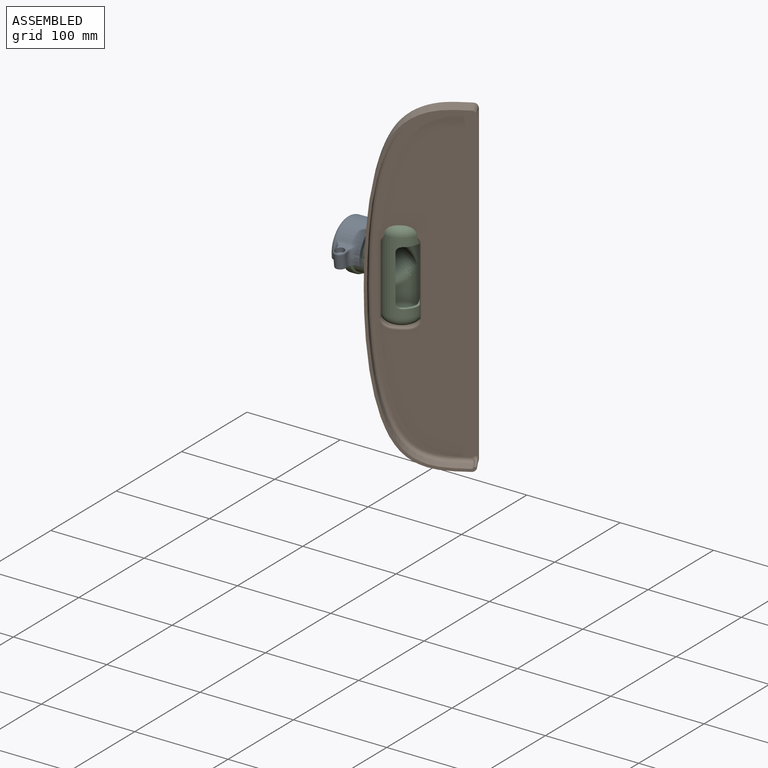
[diagram: assembled view]
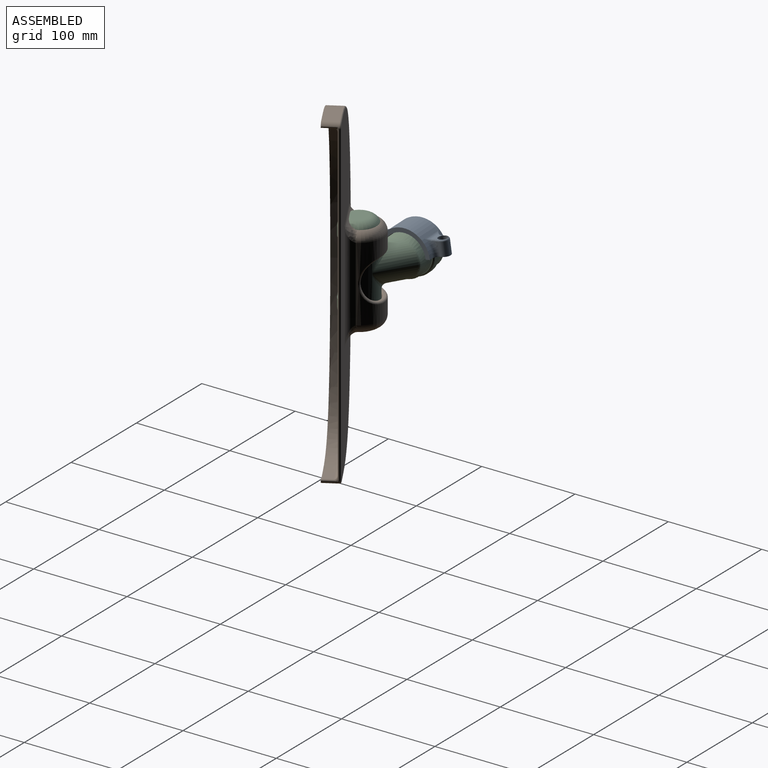
[diagram: assembled view, second angle]
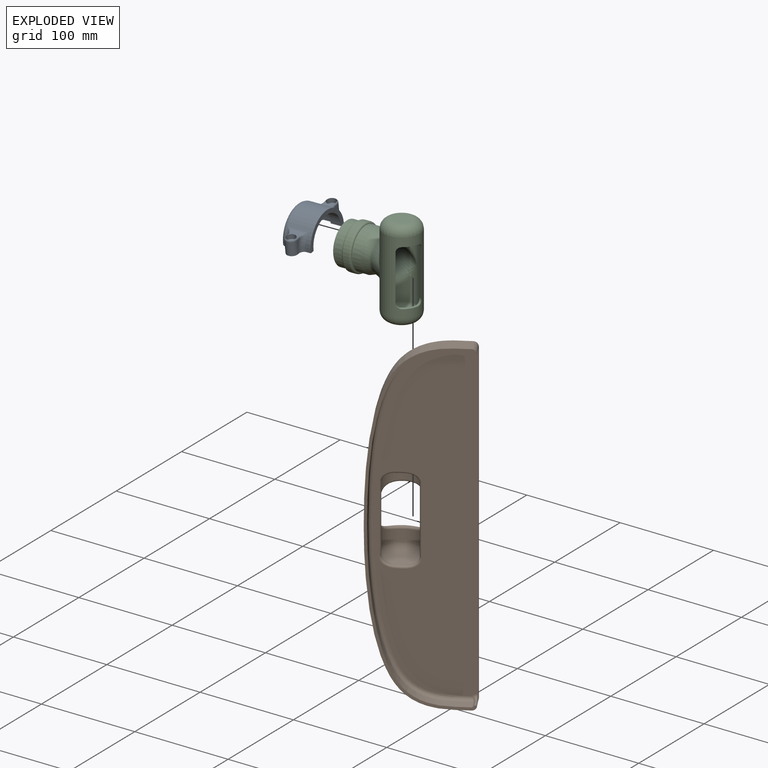
[diagram: exploded view]
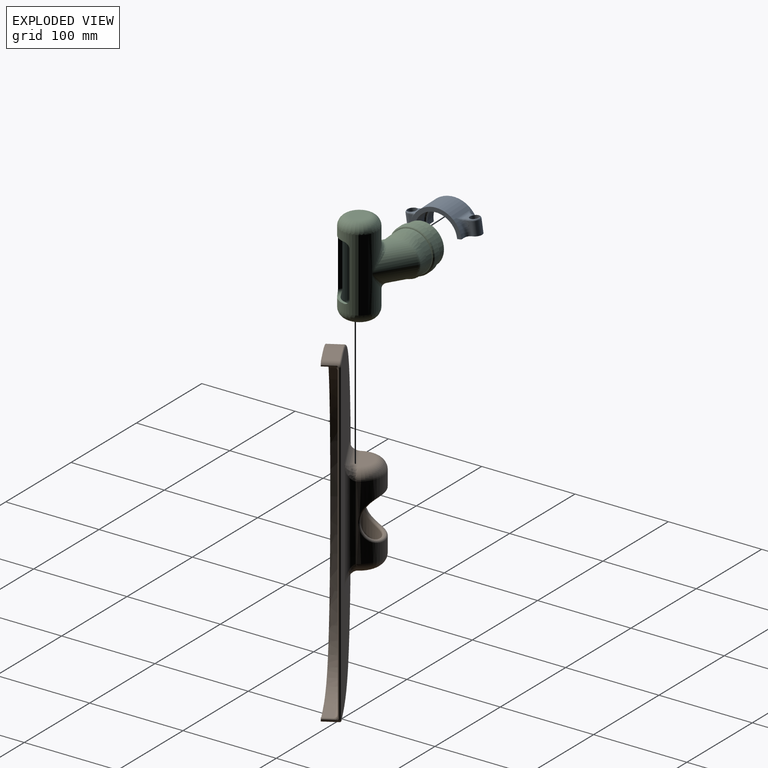
[diagram: exploded view, second angle]
ASSEMBLY  parts=3 mates=2
PART A: 70 faces, bbox 79x30.2x31 mm
  f0: cylinder r=27mm len=54mm, axis (0,0,1), area 1463.7mm2, adj f1,f9,f17,f18,f19,f36,f37,f38
  f1: torus R=22.5mm, axis (0,0,1), area 545.6mm2, adj f0,f2,f50,f60
  f2: cylinder r=22.5mm len=45mm, axis (0,0,1), area 706.9mm2, adj f1,f3,f51,f61
  f3: plane 45.5x23.75mm, normal (0,0,-1), area 18.3mm2, adj f2,f4,f51,f52,f56,f61,f62,f69
  f4: torus R=22.75mm, axis (0,0,1), area 237.1mm2, adj f3,f5,f52,f62
  f5: cylinder r=24.75mm len=49.5mm, axis (0,0,1), area 466.5mm2, adj f4,f6,f53,f63
  f6: torus R=22.75mm, axis (0,0,1), area 237.1mm2, adj f5,f7,f54,f64
  f7: plane 45.5x23.75mm, normal (0,0,1), area 18.3mm2, adj f6,f8,f54,f55,f56,f64,f65,f69
  f8: cylinder r=22.5mm len=45mm, axis (0,0,1), area 777.5mm2, adj f7,f9,f55,f65
  f9: plane 54x28mm, normal (0,0,-1), area 358.9mm2, adj f0,f8,f49,f55,f56,f65,f66,f69
  f10: cylinder r=3mm len=11mm, axis (0,1,0), area 207.3mm2, adj f11,f56
  f11: plane 10x10mm, normal (0,-1,0), area 50.3mm2, adj f10,f15
  f12: plane 14.27x3.76mm, normal (0,0,-1), area 26.2mm2, adj f13,f17,f25,f26,f56,f58
  f13: cylinder r=6mm len=14.27mm, axis (0,1,0), area 268.9mm2, adj f12,f14,f24,f56
  f14: plane 14.27x3.76mm, normal (0,0,1), area 26.2mm2, adj f13,f18,f22,f23,f56,f57
  f15: cylinder r=5mm len=10mm, axis (0,1,0), area 157.1mm2, adj f11,f16,f23,f24,f25
  f16: plane 10.3x5.02mm, normal (0,-1,0), area 32.1mm2, adj f15,f19,f21,f22,f26,f27
  f17: torus R=32mm, axis (0,0,-1), area 117.4mm2, adj f0,f12,f27,f28,f58
  f18: torus R=32mm, axis (0,0,-1), area 117.4mm2, adj f0,f14,f20,f21,f57
  f19: cylinder r=5mm len=22mm, axis (0,0,1), area 72.3mm2, adj f0,f16,f20,f28
  f20: bspline ~6.42x5.74mm, area 8.2mm2, adj f18,f19,f21
  f21: bspline ~7.44x3.54mm, area 11.1mm2, adj f16,f18,f20,f22
  f22: cylinder r=2mm len=2mm, axis (1,0,0), area 2.4mm2, adj f14,f16,f21,f23
  f23: bspline ~4.15x2.48mm, area 7.4mm2, adj f14,f15,f22,f24
  f24: torus R=4mm, axis (0,-1,0), area 37.2mm2, adj f13,f15,f23,f25
  f25: bspline ~4.15x2.48mm, area 7.4mm2, adj f12,f15,f24,f26
  f26: cylinder r=2mm len=2mm, axis (-1,0,0), area 2.4mm2, adj f12,f16,f25,f27
  f27: bspline ~7.44x3.54mm, area 11.1mm2, adj f16,f17,f26,f28
  f28: bspline ~6.42x5.74mm, area 8.3mm2, adj f17,f19,f27
  f29: cylinder r=3mm len=11mm, axis (0,1,0), area 207.3mm2, adj f30,f69
  f30: plane 10x10mm, normal (0,-1,0), area 50.3mm2, adj f29,f34
  f31: plane 14.27x3.76mm, normal (0,0,-1), area 26.2mm2, adj f32,f36,f44,f45,f67,f69
  f32: cylinder r=6mm len=14.27mm, axis (0,1,0), area 268.9mm2, adj f31,f33,f43,f69
  f33: plane 14.27x3.76mm, normal (0,0,1), area 26.2mm2, adj f32,f37,f41,f42,f68,f69
  f34: cylinder r=5mm len=10mm, axis (0,1,0), area 157.1mm2, adj f30,f35,f42,f43,f44
  f35: plane 10.3x5.03mm, normal (0,-1,0), area 32.1mm2, adj f34,f38,f40,f41,f45,f46
  f36: torus R=32mm, axis (0,0,-1), area 117.4mm2, adj f0,f31,f46,f47,f67
  f37: torus R=32mm, axis (0,0,-1), area 117.4mm2, adj f0,f33,f39,f40,f68
  f38: cylinder r=5mm len=22mm, axis (0,0,1), area 72.3mm2, adj f0,f35,f39,f47
  f39: bspline ~6.42x5.74mm, area 8.2mm2, adj f37,f38,f40
  f40: bspline ~7.44x3.54mm, area 11.1mm2, adj f35,f37,f39,f41
  f41: cylinder r=2mm len=2mm, axis (-1,0,0), area 2.4mm2, adj f33,f35,f40,f42
  f42: bspline ~4.15x2.48mm, area 7.4mm2, adj f33,f34,f41,f43
  f43: torus R=4mm, axis (0,-1,0), area 37.2mm2, adj f32,f34,f42,f44
  f44: bspline ~4.15x2.48mm, area 7.4mm2, adj f31,f34,f43,f45
  f45: cylinder r=2mm len=2mm, axis (1,0,0), area 2.4mm2, adj f31,f35,f44,f46
  f46: bspline ~7.44x3.54mm, area 11.1mm2, adj f35,f36,f45,f47
  f47: bspline ~6.42x5.74mm, area 8.3mm2, adj f36,f38,f46
  f48: plane 1x0.21mm, normal (1,0,0), area 0.2mm2, adj f0,f50,f56,f57
  f49: plane 4.5x1mm, normal (1,0,0), area 4.5mm2, adj f0,f9,f56,f58
  f50: cylinder r=4.51mm len=4.5mm, axis (0,-1,0), area 6.9mm2, adj f1,f48,f51,f56
  f51: plane 10x1mm, normal (-1,0,0), area 10mm2, adj f2,f3,f50,f56
  f52: cylinder r=2mm len=2mm, axis (0,-1,0), area 3.1mm2, adj f3,f4,f53,f56
  f53: plane 6x1mm, normal (-1,0,0), area 6mm2, adj f5,f52,f54,f56
  f54: cylinder r=2mm len=2mm, axis (0,-1,0), area 3.1mm2, adj f6,f7,f53,f56
  f55: plane 11x1mm, normal (-1,0,0), area 11mm2, adj f7,f8,f9,f56
  f56: plane 31x16.5mm, normal (0,1,0), area 225.4mm2, adj f3,f7,f9,f10,f12,f13,f14,f48
  f57: cylinder r=5mm len=5mm, axis (0,-1,0), area 7.9mm2, adj f14,f18,f48,f56
  f58: cylinder r=5mm len=5mm, axis (0,-1,0), area 7.9mm2, adj f12,f17,f49,f56
  f59: plane 1x0.21mm, normal (-1,0,0), area 0.2mm2, adj f0,f60,f68,f69
  f60: cylinder r=4.51mm len=4.5mm, axis (0,-1,0), area 6.9mm2, adj f1,f59,f61,f69
  f61: plane 10x1mm, normal (1,0,0), area 10mm2, adj f2,f3,f60,f69
  f62: cylinder r=2mm len=2mm, axis (0,-1,0), area 3.1mm2, adj f3,f4,f63,f69
  f63: plane 6x1mm, normal (1,0,0), area 6mm2, adj f5,f62,f64,f69
  f64: cylinder r=2mm len=2mm, axis (0,-1,0), area 3.1mm2, adj f6,f7,f63,f69
  f65: plane 11x1mm, normal (1,0,0), area 11mm2, adj f7,f8,f9,f69
  f66: plane 4.5x1mm, normal (-1,0,0), area 4.5mm2, adj f0,f9,f67,f69
  f67: cylinder r=5mm len=5mm, axis (0,-1,0), area 7.9mm2, adj f31,f36,f66,f69
  f68: cylinder r=5mm len=5mm, axis (0,-1,0), area 7.9mm2, adj f33,f37,f59,f69
  f69: plane 31x16.5mm, normal (0,1,0), area 225.4mm2, adj f3,f7,f9,f29,f31,f32,f33,f59
PART B: 74 faces, bbox 355.4x121.6x60.9 mm
  f0: bspline ~6.87x3.62mm, area 7.4mm2, adj f15,f61,f62,f72
  f1: bspline ~6.87x3.62mm, area 7.4mm2, adj f10,f61,f63,f73
  f2: plane 81.27x5mm, normal (0,-1,0), area 402.1mm2, adj f28,f31,f32,f38,f39
  f3: plane 336.08x92.08mm, normal (0,0,1), area 23945.3mm2, adj f42,f43,f44,f45,f61,f64,f66,f67
  f4: plane 351.53x100.13mm, normal (0,0,-1), area 22179.3mm2, adj f25,f26,f27,f37,f40,f48,f49,f50
  f5: plane 340x0.5mm, normal (0,1,0), area 170mm2, adj f10,f15,f50,f61
  f6: plane 15x11mm, normal (1,0,0), area 165mm2, adj f7,f17,f18,f69
  f7: extruded ~172x77mm, area 2324.1mm2, adj f6,f8,f18,f68
  f8: extruded ~172x77mm, area 2324.1mm2, adj f7,f9,f18,f67
  f9: plane 15x11mm, normal (-1,0,0), area 165mm2, adj f8,f16,f18,f66
  f10: cylinder r=5mm len=16.5mm, axis (0,0,-1), area 95.8mm2, adj f1,f5,f11,f18,f48,f61,f63
  f11: plane 16.5x15mm, normal (-1,0,0), area 247.5mm2, adj f10,f12,f18,f49
  f12: extruded ~175x80mm, area 3568.7mm2, adj f11,f13,f18,f51,f53,f55
  f13: extruded ~175x80mm, area 3569.4mm2, adj f12,f14,f18,f56,f57,f58,f59,f60
  f14: plane 16.5x15mm, normal (1,0,0), area 247.5mm2, adj f13,f15,f18,f54
  f15: cylinder r=5mm len=16.5mm, axis (0,0,-1), area 95.8mm2, adj f0,f5,f14,f18,f52,f61,f62
  f16: cylinder r=2mm len=11mm, axis (0,0,-1), area 24.8mm2, adj f9,f18,f62,f65
  f17: cylinder r=2mm len=11mm, axis (0,0,-1), area 24.8mm2, adj f6,f18,f63,f70
  f18: plane 350x99.66mm, normal (0,0,1), area 1403.8mm2, adj f6,f7,f8,f9,f10,f11,f12,f13
  f19: plane 30x15mm, normal (1,0,0), area 353.4mm2, adj f25,f30
  f20: plane 30x15mm, normal (-1,0,0), area 353.4mm2, adj f27,f33
  f21: cylinder r=20mm len=70mm, axis (-1,0,0), area 3428.9mm2, adj f35,f36,f42,f45,f47
  f22: plane 20x20mm, normal (-1,0,0), area 314.2mm2, adj f36
  f23: plane 20x20mm, normal (1,0,0), area 314.2mm2, adj f35
  f24: cylinder r=22mm len=45.96mm, axis (0,-1,0), area 179.3mm2, adj f46,f47
  f25: cylinder r=10mm len=50mm, axis (0,1,0), area 628.3mm2, adj f4,f19,f29,f31
  f26: cylinder r=10mm len=120mm, axis (-1,0,0), area 1570.8mm2, adj f4,f28,f29,f34
  f27: cylinder r=10mm len=50mm, axis (0,-1,0), area 628.3mm2, adj f4,f20,f32,f34
  f28: cylinder r=25mm len=80mm, axis (-1,0,0), area 13796.8mm2, adj f2,f26,f30,f33,f46
  f29: bspline ~20x20mm, area 105mm2, adj f25,f26,f30
  f30: torus R=15mm, axis (-1,0,0), area 1054.4mm2, adj f19,f28,f29,f31
  f31: torus R=20mm, axis (0,1,0), area 130.2mm2, adj f2,f25,f30,f40,f41
  f32: torus R=20mm, axis (0,1,0), area 130.2mm2, adj f2,f27,f33,f37
  f33: torus R=15mm, axis (-1,0,0), area 1054.4mm2, adj f20,f28,f32,f34
  f34: bspline ~20x20mm, area 105.4mm2, adj f26,f27,f33
  f35: torus R=10mm, axis (-1,0,0), area 1170.4mm2, adj f21,f23,f43
  f36: torus R=10mm, axis (-1,0,0), area 1170.4mm2, adj f21,f22,f44
  f37: bspline ~21.06x15mm, area 85mm2, adj f4,f32,f38,f53
  f38: cylinder r=5mm len=78.58mm, axis (1,0,0), area 556.9mm2, adj f2,f37,f39,f55,f57
  f39: bspline ~13.33x5.34mm, area 17.8mm2, adj f2,f38,f41,f59
  f40: bspline ~17.9x14.87mm, area 90.5mm2, adj f4,f31,f41,f58
  f41: bspline ~6.64x5.47mm, area 17.2mm2, adj f31,f39,f40,f60
  f42: cylinder r=2mm len=70mm, axis (-1,0,0), area 293.2mm2, adj f3,f21,f43,f44
  f43: bspline ~38.11x12.56mm, area 176.3mm2, adj f3,f35,f42,f45
  f44: bspline ~38.11x14.31mm, area 176.3mm2, adj f3,f36,f42,f45
  f45: cylinder r=2mm len=70mm, axis (-1,0,0), area 293.2mm2, adj f3,f21,f43,f44
  f46: bspline ~49.95x47.83mm, area 542.6mm2, adj f24,f28
  f47: bspline ~47.63x43.96mm, area 609.4mm2, adj f21,f24
  f48: torus R=3.5mm, axis (0,0,1), area 16.5mm2, adj f4,f10,f49,f50
  f49: cylinder r=1.5mm len=15mm, axis (0,-1,0), area 35.3mm2, adj f4,f11,f48,f51
  f50: cylinder r=1.5mm len=340mm, axis (-1,0,0), area 801.1mm2, adj f4,f5,f48,f52
  f51: bspline ~130.19x100.01mm, area 392.9mm2, adj f4,f12,f49,f53
  f52: torus R=3.5mm, axis (0,0,1), area 16.5mm2, adj f4,f15,f50,f54
  f53: bspline ~11.17x2.22mm, area 16.4mm2, adj f12,f37,f51,f55
  f54: cylinder r=1.5mm len=15mm, axis (0,1,0), area 35.3mm2, adj f4,f14,f52,f56
  f55: bspline ~49.94x2.43mm, area 88.3mm2, adj f12,f38,f53,f57
  f56: bspline ~140.11x116.2mm, area 391.4mm2, adj f4,f13,f54,f58
  f57: bspline ~55.37x2.57mm, area 82.3mm2, adj f13,f38,f55,f59
  f58: bspline ~8.51x2.28mm, area 11.1mm2, adj f13,f40,f56,f60
  f59: bspline ~13.48x1.8mm, area 5.3mm2, adj f13,f39,f57,f60
  f60: bspline ~6.58x1.68mm, area 6.3mm2, adj f13,f41,f58,f59
  f61: cylinder r=1mm len=341.73mm, axis (1,0,0), area 529.5mm2, adj f0,f1,f3,f5,f10,f15,f72,f73
  f62: cylinder r=1.5mm len=14.19mm, axis (0,0,-1), area 56.9mm2, adj f0,f15,f16,f18,f64,f72
  f63: cylinder r=1.5mm len=14.19mm, axis (0,0,-1), area 56.9mm2, adj f1,f10,f17,f18,f71,f73
  f64: torus R=5.5mm, axis (0,0,1), area 15.9mm2, adj f3,f62,f65,f72
  f65: bspline ~4.95x4mm, area 5.8mm2, adj f16,f64,f66
  f66: cylinder r=4mm len=15mm, axis (0,-1,0), area 90.9mm2, adj f3,f9,f65,f67
  f67: bspline ~234.78x104.73mm, area 1313.3mm2, adj f3,f8,f66,f68
  f68: bspline ~186.32x107.39mm, area 1313.2mm2, adj f3,f7,f67,f69
  f69: cylinder r=4mm len=15mm, axis (0,1,0), area 90.9mm2, adj f3,f6,f68,f70
  f70: bspline ~4.95x4mm, area 5.8mm2, adj f17,f69,f71
  f71: torus R=5.5mm, axis (0,0,1), area 15.9mm2, adj f3,f63,f70,f73
  f72: bspline ~5.45x4.83mm, area 10.5mm2, adj f0,f3,f61,f62,f64
  f73: bspline ~5.46x4.83mm, area 10.5mm2, adj f1,f3,f61,f63,f71
PART C: 35 faces, bbox 65.7x108.6x104 mm
  f0: extruded ~44x41.71mm, area 1244.1mm2, adj f32,f33
  f1: cylinder r=19.5mm len=78mm, axis (0,0,-1), area 6212.4mm2, adj f5,f7,f8,f17,f18,f19,f20,f21
  f2: plane 19x19mm, normal (0,0,1), area 283.5mm2, adj f8
  f3: plane 19x19mm, normal (0,0,-1), area 283.5mm2, adj f7
  f4: cylinder r=19mm len=43.44mm, axis (0,-1,0), area 2390.7mm2, adj f5,f6,f25,f26
  f5: bspline ~48.01x38.21mm, area 681.6mm2, adj f1,f4
  f6: bspline ~43.98x42.7mm, area 1241.7mm2, adj f4,f25,f26,f27
  f7: torus R=9.5mm, axis (0,0,1), area 1565.9mm2, adj f1,f3
  f8: torus R=9.5mm, axis (0,0,1), area 1565.9mm2, adj f1,f2
  f9: cylinder r=16.5mm len=78mm, axis (0,0,-1), area 4946.6mm2, adj f13,f15,f16,f17,f18,f19,f20,f21
  f10: plane 19x19mm, normal (0,0,-1), area 283.5mm2, adj f16
  f11: plane 19x19mm, normal (0,0,1), area 283.5mm2, adj f15
  f12: cylinder r=16mm len=44.09mm, axis (0,-1,0), area 2170.2mm2, adj f13,f14
  f13: bspline ~48.01x32.33mm, area 939.7mm2, adj f9,f12
  f14: offset ~50.16x49.28mm, area 1195.9mm2, adj f12,f28
  f15: torus R=9.5mm, axis (0,0,1), area 964.2mm2, adj f9,f11
  f16: torus R=9.5mm, axis (0,0,1), area 964.2mm2, adj f9,f10
  f17: plane 15x4.8mm, normal (0,0,-1), area 46.4mm2, adj f1,f9,f18,f24
  f18: cylinder r=5mm len=7.23mm, axis (0,1,0), area 29.4mm2, adj f1,f9,f17,f19
  f19: plane 50x4.2mm, normal (1,0,0), area 209.8mm2, adj f1,f9,f18,f20
  f20: cylinder r=5mm len=7.23mm, axis (0,1,0), area 29.4mm2, adj f1,f9,f19,f21
  f21: plane 15x4.8mm, normal (0,0,1), area 46.4mm2, adj f1,f9,f20,f22
  f22: cylinder r=5mm len=7.23mm, axis (0,1,0), area 29.4mm2, adj f1,f9,f21,f23
  f23: plane 50x4.2mm, normal (-1,0,0), area 209.8mm2, adj f1,f9,f22,f24
  f24: cylinder r=5mm len=7.23mm, axis (0,1,0), area 29.4mm2, adj f1,f9,f17,f23
  f25: bspline ~34.07x12.99mm, area 87.8mm2, adj f4,f6
  f26: bspline ~38.46x29.57mm, area 166mm2, adj f4,f6
  f27: extruded ~44x42.25mm, area 1382.3mm2, adj f6,f31
  f28: extruded ~47.67x45.1mm, area 3445.7mm2, adj f14,f34
  f29: plane 42.01x35.09mm, normal (-0.55,0.84,0), area 135.2mm2, adj f33,f34
  f30: cylinder r=24mm len=48mm, axis (0.55,-0.84,0), area 904.8mm2, adj f31,f32
  f31: torus R=22mm, axis (-0.55,0.84,0), area 459.4mm2, adj f27,f30
  f32: torus R=22mm, axis (-0.55,0.84,0), area 459.4mm2, adj f0,f30
  f33: bspline ~44.01x37.31mm, area 213.5mm2, adj f0,f29
  f34: bspline ~39.7x33.4mm, area 190.6mm2, adj f28,f29
PLACE A rot(axis=(-0.53,-0.64,0.56),116.5deg) t=(-13.28,-71.97,-18.71)mm
PLACE B rot(axis=(0.45,0.77,-0.45),104.5deg) t=(76.3,-111.78,-27)mm fixed
PLACE C rot(axis=(0,0,1),58.7deg) t=(54.85,-112.62,-70)mm
MATE revolute B.f21 <-> C.f1  axis (0,0,-1) through (54.85,-112.62,18)mm
MATE revolute A.f0 <-> C.f31  axis (-1,-0.04,0) through (-2.2,-93.85,-21.93)mm
